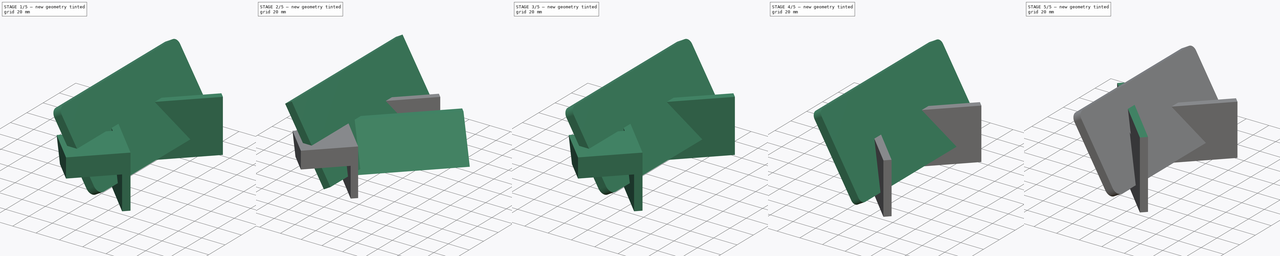
[diagram: build sequence overview — one tinted view per stage of 5, left to right]
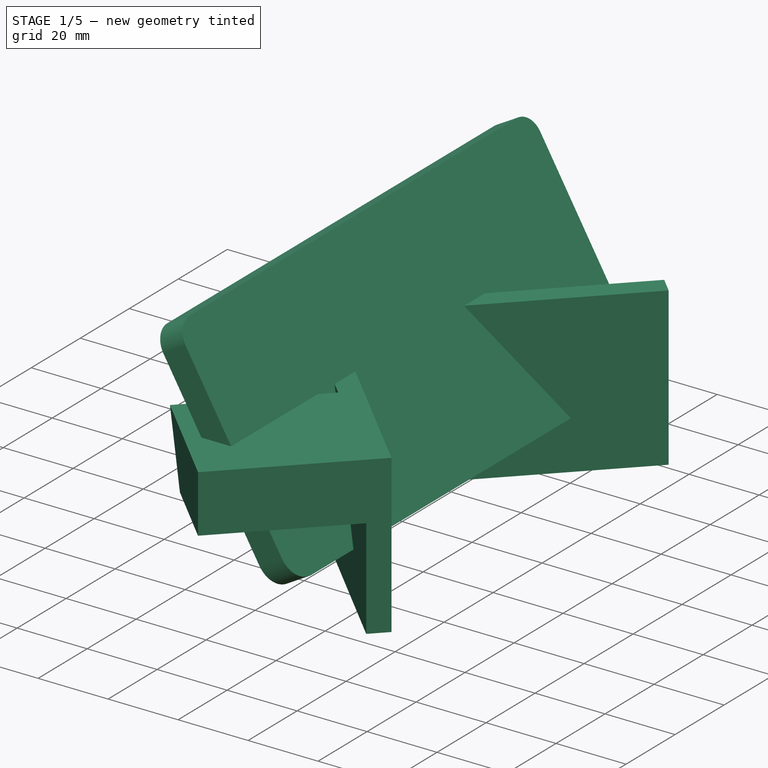
[diagram: stage 1 of 5 — iso view after this stage's code; geometry added in this stage tinted green]
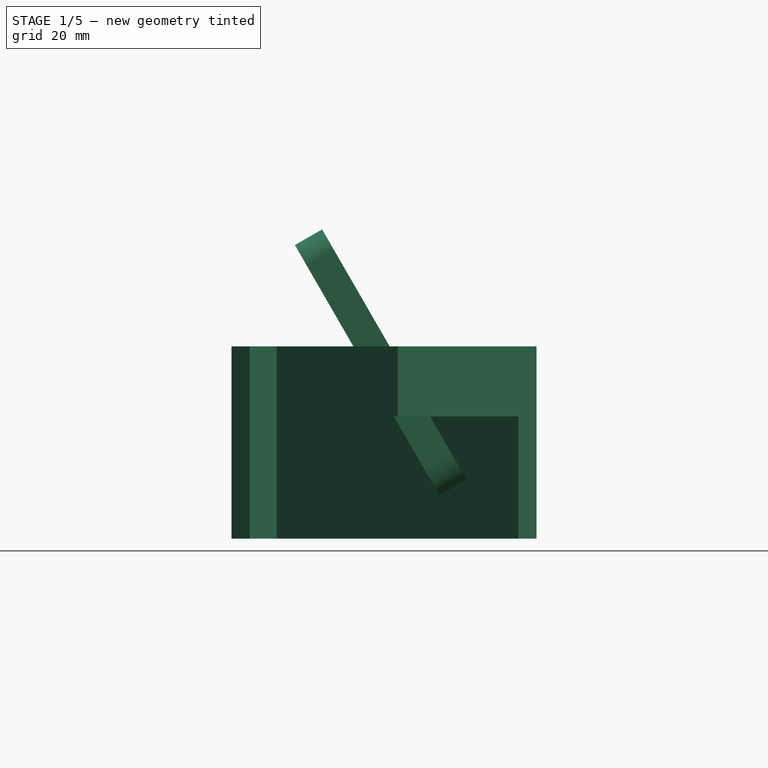
[diagram: stage 1 of 5 — front view after this stage's code; geometry added in this stage tinted green]
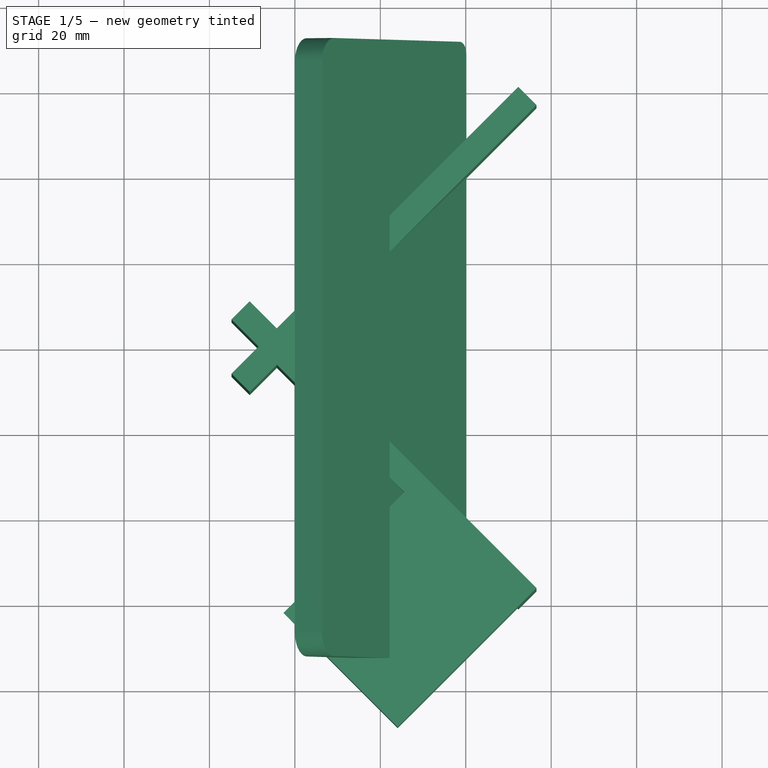
[diagram: stage 1 of 5 — top view after this stage's code; geometry added in this stage tinted green]
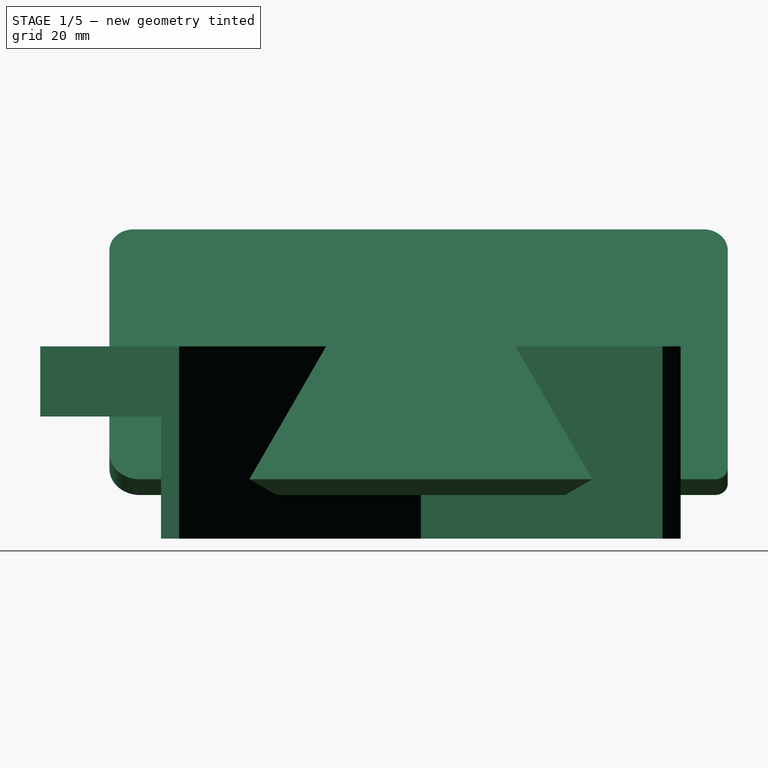
[diagram: stage 1 of 5 — right view after this stage's code; geometry added in this stage tinted green]
FCSTD DOCUMENT  (FreeCAD 0.16RUnknown)
Label: mobileStand
License: All rights reserved
LicenseURL: http://en.wikipedia.org/wiki/All_rights_reserved
objects: Sketcher::SketchObject×10, PartDesign::Pad×6, Part::Cut×5, Part::Feature×5, PartDesign::Fillet×4, Part::Extrusion×4, App::DocumentObjectGroup×4, Part::MultiFuse×2, Part::FeaturePython×2, Spreadsheet::Sheet×1, Part::Mirroring×1
note: 45 computed .brp shape members not serialized (recipe doc carries the construction recipe); baked Part::Feature solids carry a one-line shape summary decoded from their .brp

FEATURE [Sketcher::SketchObject] Sketch008
  ExternalGeometry = -> [Cut003]
  Placement = pos=(0,0,0) rot=(0.281085,0.678598,0.678598;2.59356rad)
  Support = -> Cut003 [Face1]
  sketch-geometry (4):
    g0: LineSegment StartX=-80 StartY=35 StartZ=0 EndX=-80 EndY=18.5966 EndZ=0
    g1: LineSegment StartX=-80 StartY=18.5966 StartZ=0 EndX=-55.5822 EndY=18.5966 EndZ=0
    g2: LineSegment StartX=-55.5822 StartY=18.5966 StartZ=0 EndX=-42.2061 EndY=35 EndZ=0
    g3: LineSegment StartX=-42.2061 StartY=35 StartZ=0 EndX=-80 EndY=35 EndZ=0
  constraints (9):
    c: Vertical(g0)
    c: Coincident(g0,g1)
    c: Horizontal(g1)
    c: Coincident(g1,g2)
    c: Coincident(g2,g3)
    c: Coincident(g3,g0)
    c: Horizontal(g3)
    c: Coincident(g0,g-5)
    c: Coincident(g2,g-5)
FEATURE [Part::Feature] Face002
  shape: bbox 26.72 x 26.72 x 16.4 mm, 1 faces, 0 solids (baked)
FEATURE [Part::Feature] Face003
  shape: bbox 56.57 x 56.57 x 45 mm, 1 faces, 0 solids (baked)
FEATURE [Part::Extrusion] Extrusion002
  Base = -> Face002
  Dir = (-32.5174,-32.5174,0)
  Solid = true
FEATURE [Part::Feature] Solid
  shape: bbox 71.42 x 71.42 x 45 mm, 26 faces (baked)
FEATURE [App::DocumentObjectGroup] Group002  label="thirdTry"
  Group = -> [Fillet003,Solid,Pad002,Sketch006,Sketch008,Cut004,Pad003,Face003,Sketch007,Fillet002]
FEATURE [Sketcher::SketchObject] Sketch009
  Placement = pos=(16.9514,0,29.3608) rot=(0,1,0;1.0472rad)
  sketch-geometry (8):
    g0: LineSegment StartX=-28.2797 StartY=71.8448 StartZ=0 EndX=30.657 EndY=71.8448 EndZ=0
    g1: LineSegment StartX=33.657 StartY=68.8448 StartZ=0 EndX=33.657 EndY=-65.7858 EndZ=0
    g2: LineSegment StartX=26.5393 StartY=-72.9035 StartZ=0 EndX=-28.2768 EndY=-72.9035 EndZ=0
    g3: LineSegment StartX=-33.9005 StartY=-67.2798 StartZ=0 EndX=-33.9005 EndY=66.224 EndZ=0
    g4: ArcOfCircle CenterX=26.5393 CenterY=-65.7858 CenterZ=0 NormalX=0 NormalY=0 NormalZ=1 Radius=7.11772 StartAngle=4.71239 EndAngle=6.28319
    g5: ArcOfCircle CenterX=30.657 CenterY=68.8448 CenterZ=0 NormalX=0 NormalY=0 NormalZ=1 Radius=3 StartAngle=0 EndAngle=1.5708
    g6: ArcOfCircle CenterX=-28.2797 CenterY=66.224 CenterZ=0 NormalX=0 NormalY=0 NormalZ=1 Radius=5.62078 StartAngle=1.5708 EndAngle=3.14159
    g7: ArcOfCircle CenterX=-28.2768 CenterY=-67.2798 CenterZ=0 NormalX=0 NormalY=0 NormalZ=1 Radius=5.62372 StartAngle=3.14159 EndAngle=4.71239
  constraints (13):
    c: Horizontal(g0)
    c: Horizontal(g2)
    c: Vertical(g1)
    c: Vertical(g3)
    c: Tangent(g1,g4) = 1.5708
    c: Tangent(g2,g4) = 1.5708
    c: Tangent(g0,g5) = 1.5708
    c: Tangent(g1,g5) = 1.5708
    c: Tangent(g0,g6) = 1.5708
    c: Tangent(g3,g6) = 1.5708
    c: Tangent(g2,g7) = 1.5708
    c: Tangent(g3,g7) = 1.5708
    c: Distance(g5,g0) = 3
FEATURE [PartDesign::Pad] Pad004  label="4a"
  Length = 7.35
  Length2 = 100
  Placement = pos=(16.9514,0,29.3608) rot=(0,1,0;1.0472rad)
  Sketch = -> Sketch009
  Type = 0
  expr: Length = equations.wdt
FEATURE [Sketcher::SketchObject] Sketch010
  sketch-geometry (5):
    g0: LineSegment StartX=0 StartY=0 StartZ=0 EndX=56.5685 EndY=-56.5685 EndZ=0
    g1: LineSegment StartX=56.5685 StartY=-56.5685 StartZ=0 EndX=52.3259 EndY=-60.8112 EndZ=0
    g2: LineSegment StartX=52.3259 StartY=-60.8112 StartZ=0 EndX=-14.8492 EndY=6.36396 EndZ=0
    g3: LineSegment StartX=-14.8492 StartY=6.36396 StartZ=0 EndX=-10.6066 EndY=10.6066 EndZ=0
    g4: LineSegment StartX=-10.6066 StartY=10.6066 StartZ=0 EndX=0 EndY=0 EndZ=0
  constraints (14):
    c: Coincident(g-1,g0)
    c: Coincident(g0,g1)
    c: Coincident(g1,g2)
    c: Coincident(g2,g3)
    c: Coincident(g3,g4)
    c: Coincident(g4,g0)
    c: Perpendicular(g1,g0)
    c: Perpendicular(g3,g4)
    c: Parallel(g1,g3)
    c: Parallel(g2,g0)
    c: Distance(g0) = 80
    c: Distance(g4) = 15
    c: Distance(g3) = 6
    c: Angle(g0,g-1) = 0.785398
FEATURE [PartDesign::Pad] Pad005  label="4b"
  Length = 35
  Length2 = 10
  Sketch = -> Sketch010
  Type = 4
FEATURE [Part::Mirroring] Part__Mirroring  label="4b (Mirror #1)"
  Base = (0,0,0)
  Normal = (1,0,0)
  Placement = pos=(0,0,0) rot=(0,0,1;3.14159rad)
  Source = -> Pad005
FEATURE [Part::MultiFuse] Fusion001
  Shapes = -> [Pad005,Part__Mirroring]
FEATURE [App::DocumentObjectGroup] Group003  label="fourthTry"
  Group = -> [Fusion001,Pad004]
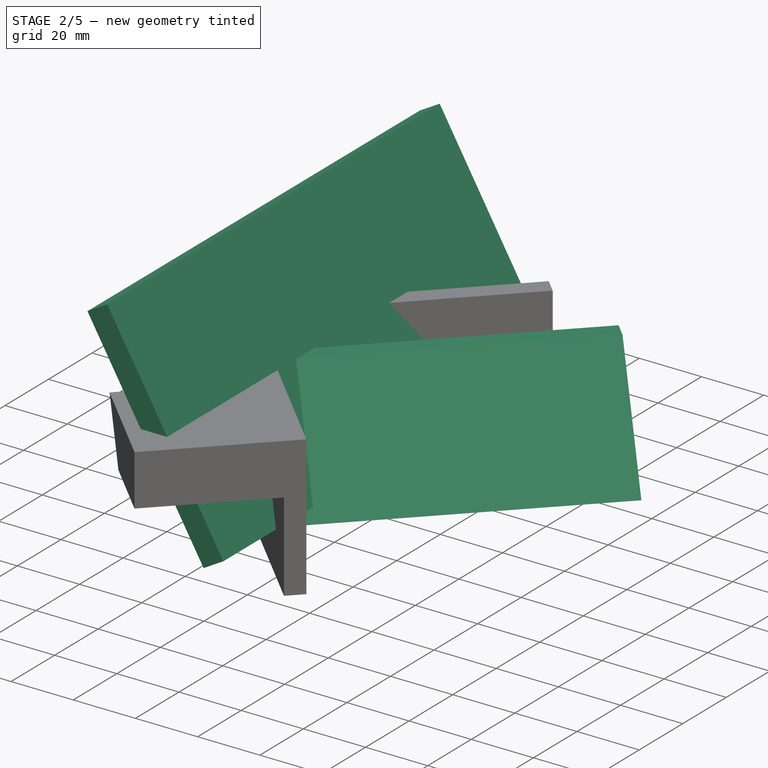
[diagram: stage 2 of 5 — iso view after this stage's code; geometry added in this stage tinted green]
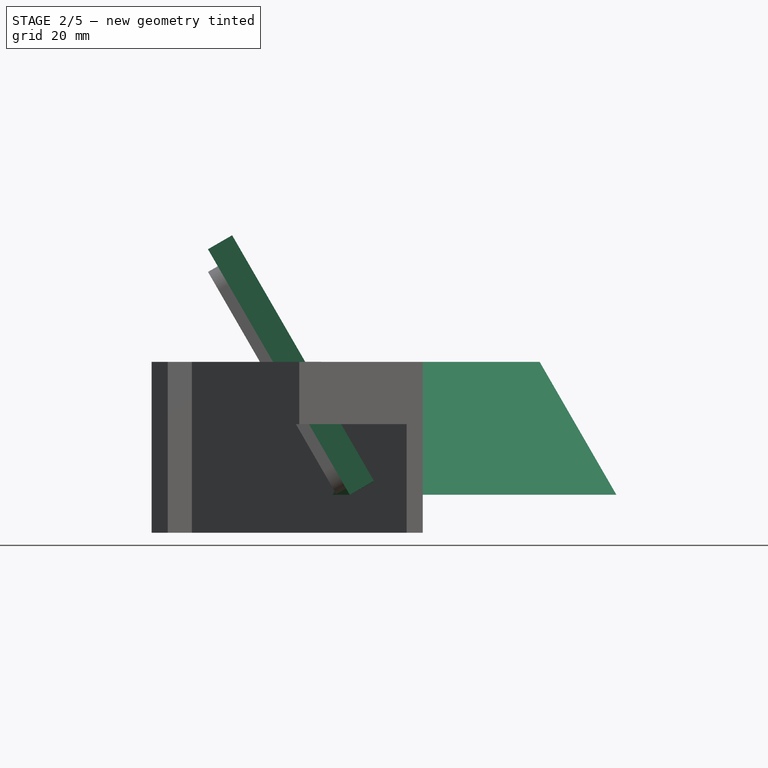
[diagram: stage 2 of 5 — front view after this stage's code; geometry added in this stage tinted green]
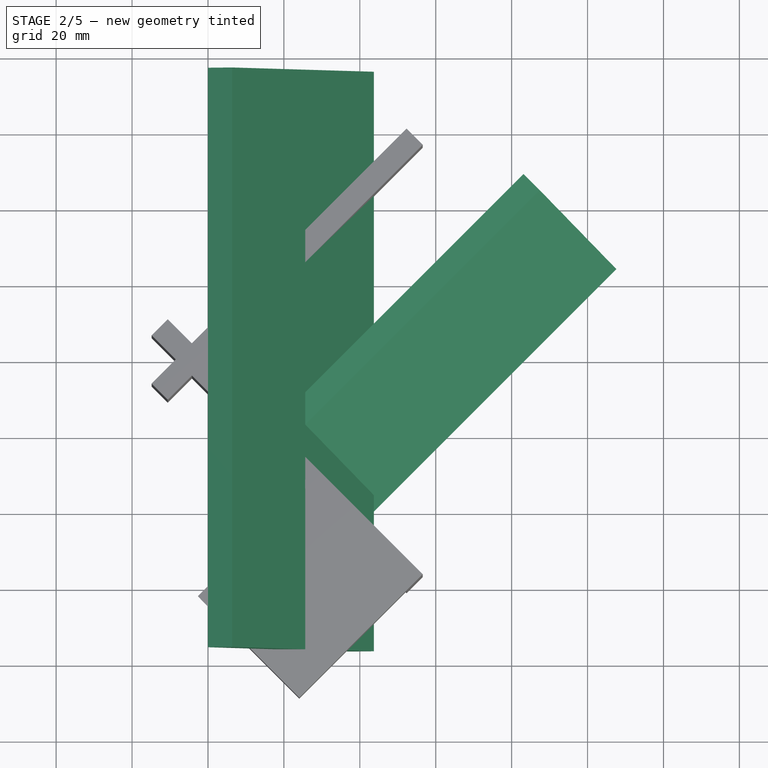
[diagram: stage 2 of 5 — top view after this stage's code; geometry added in this stage tinted green]
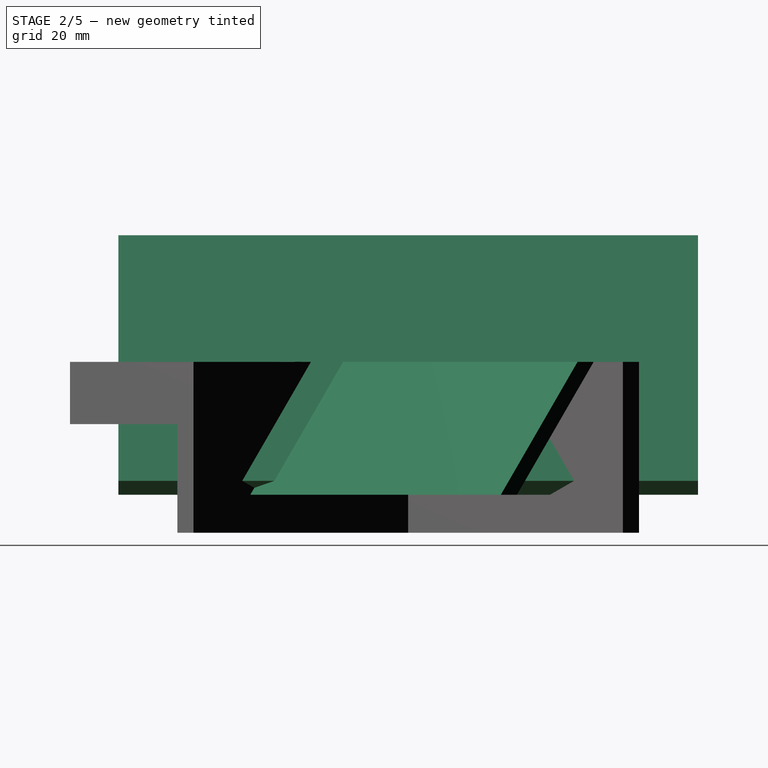
[diagram: stage 2 of 5 — right view after this stage's code; geometry added in this stage tinted green]
FEATURE [App::DocumentObjectGroup] Group  label="firstTry"
  Group = -> [Fillet,Pad,Cut]
FEATURE [Sketcher::SketchObject] Sketch002
  sketch-geometry (9):
    g0: LineSegment StartX=0 StartY=35 StartZ=0 EndX=34 EndY=35 EndZ=0
    g1: LineSegment StartX=34 StartY=35 StartZ=0 EndX=48.4338 EndY=10 EndZ=0
    g2: LineSegment StartX=48.4338 StartY=10 StartZ=0 EndX=57.4338 EndY=10 EndZ=0
    g3: LineSegment StartX=57.4338 StartY=10 StartZ=0 EndX=64.6394 EndY=20 EndZ=0
    g4: LineSegment StartX=64.6394 StartY=20 StartZ=0 EndX=85 EndY=20 EndZ=0
    g5: LineSegment StartX=85 StartY=20 StartZ=0 EndX=85 EndY=0 EndZ=0
    g6: LineSegment StartX=85 StartY=0 StartZ=0 EndX=0 EndY=0 EndZ=0
    g7: LineSegment StartX=0 StartY=0 StartZ=0 EndX=0 EndY=35 EndZ=0
    g8: GeomPoint [constr] X=61.5772 Y=15.7502 Z=0
  constraints (24):
    c: Coincident(g0,g1)
    c: Coincident(g1,g2)
    c: Horizontal(g2)
    c: Coincident(g4,g5)
    c: Coincident(g5,g6)
    c: Coincident(g6,g-1)
    c: Horizontal(g6)
    c: Coincident(g6,g7)
    c: Coincident(g7,g0)
    c: Vertical(g7)
    c: Perpendicular(g7,g0)
    c: Perpendicular(g6,g5)
    c: Angle(g2,g1) = 2.0944
    c: Parallel(g4,g2)
    c: DistanceY(g5,g2) = 10
    c: Distance(g6) = 85
    c: DistanceX(g0,g0) = 34
    c: DistanceY(g7,g7) = 35
    c: DistanceY(g5,g5) = 20
    c: Coincident(g4,g3)
    c: DistanceY(g3,g3) = 10
    c: Coincident(g3,g2)
    c: DistanceX(g2,g2) = 9
    c: PointOnObject(g8,g3)
FEATURE [App::DocumentObjectGroup] Group001  label="secondTry"
  Group = -> [Sketch002]
FEATURE [Sketcher::SketchObject] Sketch003
  Placement = pos=(18.675,0,32.346) rot=(0,1,0;1.0472rad)
  expr: Constraints[9] = equations.lgt
  expr: Constraints[8] = equations.hyt
  sketch-geometry (4):
    g0: LineSegment StartX=-37.35 StartY=76.35 StartZ=0 EndX=37.35 EndY=76.35 EndZ=0
    g1: LineSegment StartX=37.35 StartY=76.35 StartZ=0 EndX=37.35 EndY=-76.35 EndZ=0
    g2: LineSegment StartX=37.35 StartY=-76.35 StartZ=0 EndX=-37.35 EndY=-76.35 EndZ=0
    g3: LineSegment StartX=-37.35 StartY=-76.35 StartZ=0 EndX=-37.35 EndY=76.35 EndZ=0
  constraints (12):
    c: Coincident(g0,g1)
    c: Coincident(g1,g2)
    c: Coincident(g2,g3)
    c: Coincident(g3,g0)
    c: Horizontal(g0)
    c: Horizontal(g2)
    c: Vertical(g1)
    c: Vertical(g3)
    c: DistanceX(g0,g0) = 74.7
    c: DistanceY(g1,g1) = 152.7
    c: Symmetric(g0,g0,g-2)
    c: Symmetric(g0,g1,g-1)
FEATURE [PartDesign::Pad] Pad002
  Length = 7.35
  Length2 = 100
  Placement = pos=(18.675,0,32.346) rot=(0,1,0;1.0472rad)
  Sketch = -> Sketch003
  Type = 0
  expr: Length = equations.wdt
FEATURE [Sketcher::SketchObject] Sketch005  label="Stay"
  expr: Constraints[10] = equations.ply
  sketch-geometry (5):
    g0: LineSegment StartX=0 StartY=0 StartZ=0 EndX=56.5685 EndY=-56.5685 EndZ=0
    g1: LineSegment StartX=56.5685 StartY=-56.5685 StartZ=0 EndX=52.3259 EndY=-60.8112 EndZ=0
    g2: LineSegment StartX=52.3259 StartY=-60.8112 StartZ=0 EndX=-14.8492 EndY=6.36396 EndZ=0
    g3: LineSegment StartX=-14.8492 StartY=6.36396 StartZ=0 EndX=-10.6066 EndY=10.6066 EndZ=0
    g4: LineSegment StartX=-10.6066 StartY=10.6066 StartZ=0 EndX=0 EndY=0 EndZ=0
  constraints (14):
    c: Coincident(g0,g-1)
    c: Coincident(g1,g0)
    c: Coincident(g2,g1)
    c: Coincident(g2,g3)
    c: Coincident(g3,g4)
    c: Coincident(g4,g-1)
    c: Angle(g0,g-1) = 0.785398
    c: Perpendicular(g0,g1)
    c: Perpendicular(g3,g4)
    c: Parallel(g2,g4)
    c: Distance(g1) = 6
    c: Equal(g1,g3)
    c: Distance(g0) = 80
    c: Distance(g4) = 15
FEATURE [PartDesign::Pad] Pad003
  Length = 35
  Length2 = 10
  Sketch = -> Sketch005
  Type = 4
FEATURE [Part::FeaturePython] Clone001  label="Clone of Pad003"  # Draft clone (typed FeaturePython)
  Objects = -> [Pad003]
  Scale = (1,1,1)
FEATURE [Sketcher::SketchObject] Sketch006
  ExternalGeometry = -> [Cut001]
  Placement = pos=(-4.24264,-4.24264,0) rot=(0.862856,-0.357407,-0.357407;1.71777rad)
  Support = -> Cut001 [Face10]
  sketch-geometry (4):
    g0: LineSegment StartX=30.2435 StartY=35 StartZ=0 EndX=24.2435 EndY=35 EndZ=0
    g1: LineSegment StartX=24.2435 StartY=35 StartZ=0 EndX=52.8209 EndY=0 EndZ=0
    g2: LineSegment StartX=52.8209 StartY=0 StartZ=0 EndX=58.8209 EndY=0 EndZ=0
    g3: LineSegment StartX=58.8209 StartY=0 StartZ=0 EndX=30.2435 EndY=35 EndZ=0
  constraints (8):
    c: Coincident(g-3,g0)
    c: Coincident(g0,g-4)
    c: Coincident(g0,g1)
    c: Coincident(g1,g-4)
    c: Coincident(g1,g2)
    c: Coincident(g2,g-3)
    c: Coincident(g2,g3)
    c: Coincident(g3,g0)
FEATURE [Part::Feature] Face
  shape: bbox 24.45 x 24.45 x 35 mm, 1 faces, 0 solids (baked)
FEATURE [Part::Extrusion] Extrusion
  Base = -> Face
  Dir = (70.2462,70.2462,-3.78e-10)
  Solid = true
FEATURE [Sketcher::SketchObject] Sketch007
  ExternalGeometry = -> [Cut002]
  Placement = pos=(0,0,0) rot=(0.281085,0.678598,0.678598;2.59356rad)
  Support = -> Cut002 [Face1]
  sketch-geometry (6):
    g0: LineSegment StartX=-42.246 StartY=35 StartZ=0 EndX=-36.246 EndY=35 EndZ=0
    g1: LineSegment StartX=-36.246 StartY=35 StartZ=0 EndX=-61.8228 EndY=3.675 EndZ=0
    g2: LineSegment StartX=-61.8228 StartY=3.675 StartZ=0 EndX=-57.3209 EndY=1.83712 EndZ=0
    g3: LineSegment StartX=-57.3209 StartY=1.83712 StartZ=0 EndX=-58.8209 EndY=0 EndZ=0
    g4: LineSegment StartX=-58.8209 StartY=0 StartZ=0 EndX=-67.8212 EndY=3.58777 EndZ=0
    g5: LineSegment StartX=-67.8212 StartY=3.58777 StartZ=0 EndX=-42.1675 EndY=35.0473 EndZ=0
  constraints (10):
    c: Coincident(g-3,g0)
    c: Coincident(g0,g-4)
    c: Coincident(g0,g1)
    c: Coincident(g1,g-5)
    c: Coincident(g1,g2)
    c: Coincident(g2,g-5)
    c: Coincident(g2,g3)
    c: Coincident(g3,g-6)
    c: Coincident(g3,g4)
    c: Coincident(g4,g5)
FEATURE [Part::Feature] Face001
  shape: bbox 22.33 x 22.33 x 35.05 mm, 1 faces, 0 solids (baked)
FEATURE [Part::Extrusion] Extrusion001
  Base = -> Face001
  Dir = (-8.81022,-8.81022,0)
  Solid = true
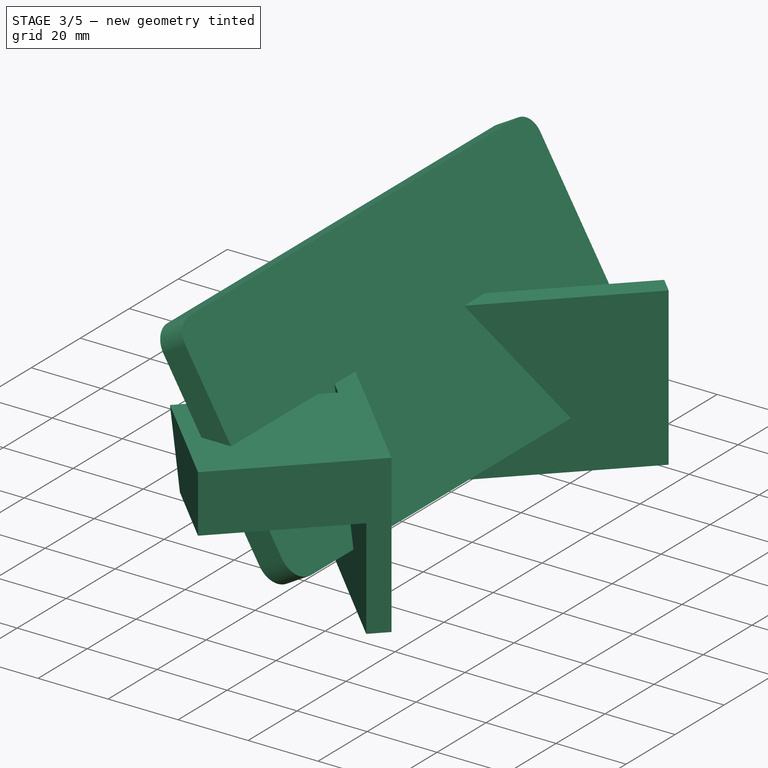
[diagram: stage 3 of 5 — iso view after this stage's code; geometry added in this stage tinted green]
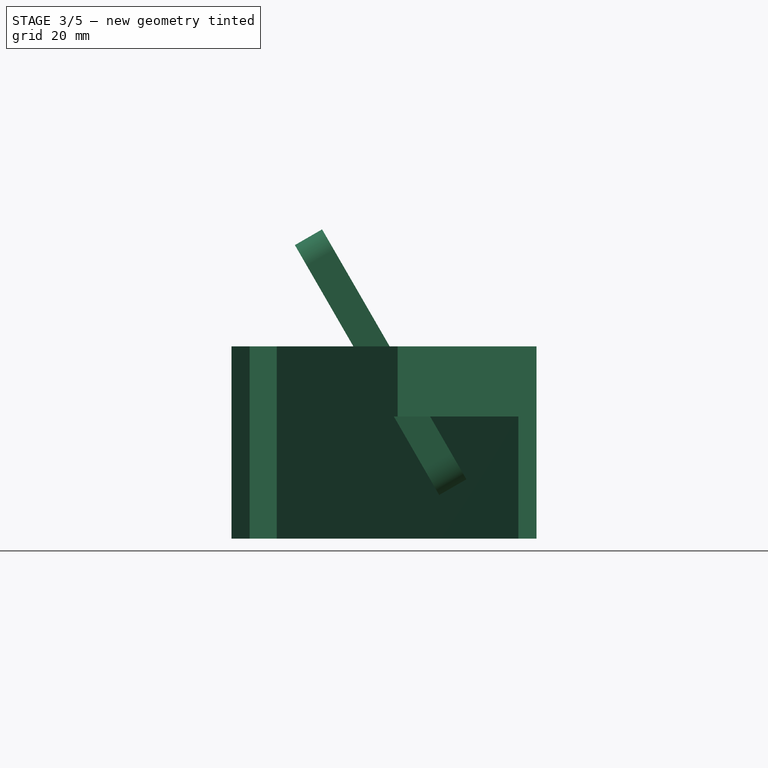
[diagram: stage 3 of 5 — front view after this stage's code; geometry added in this stage tinted green]
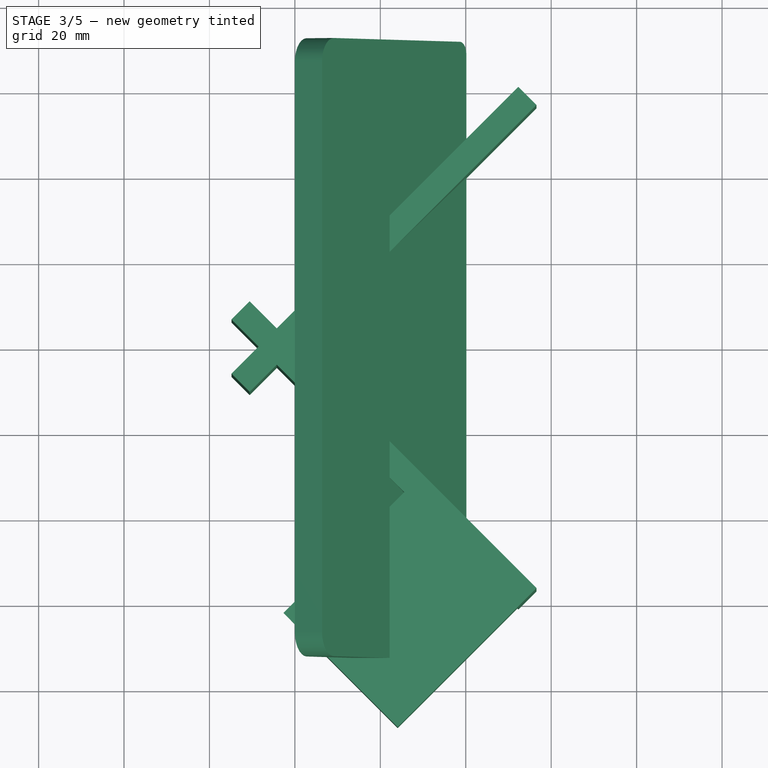
[diagram: stage 3 of 5 — top view after this stage's code; geometry added in this stage tinted green]
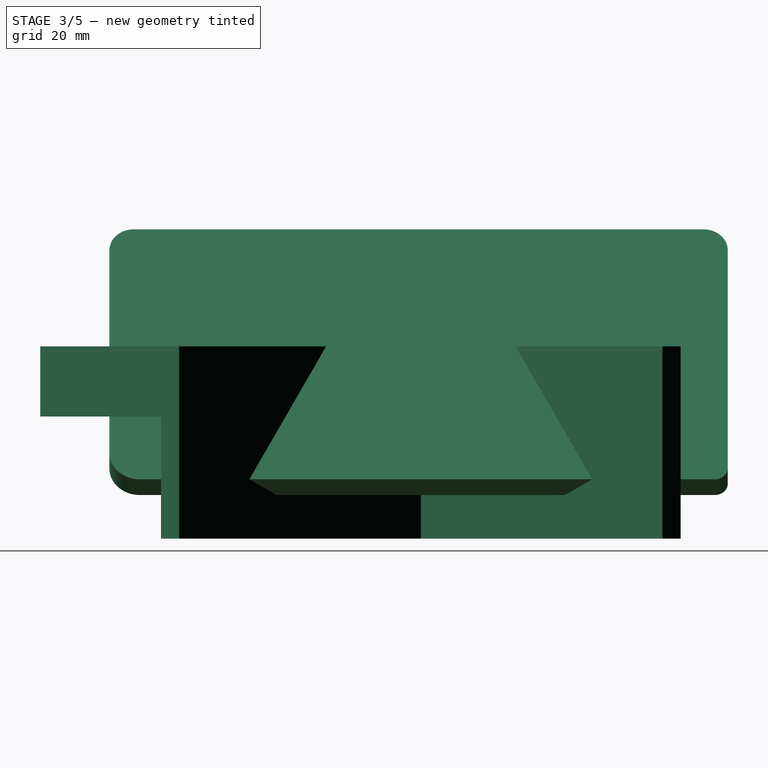
[diagram: stage 3 of 5 — right view after this stage's code; geometry added in this stage tinted green]
FEATURE [PartDesign::Fillet] Fillet001
  Base = -> Pad002 [Edge1,Edge2,Edge5,Edge8]
  Placement = pos=(18.675,0,32.346) rot=(0,1,0;1.0472rad)
  Radius = 3
FEATURE [Part::Cut] Cut001
  Base = -> Clone001
  Tool = -> Fillet001
FEATURE [Part::Cut] Cut002
  Base = -> Cut001
  Tool = -> Extrusion
FEATURE [Part::Cut] Cut003
  Base = -> Cut002
  Tool = -> Extrusion001
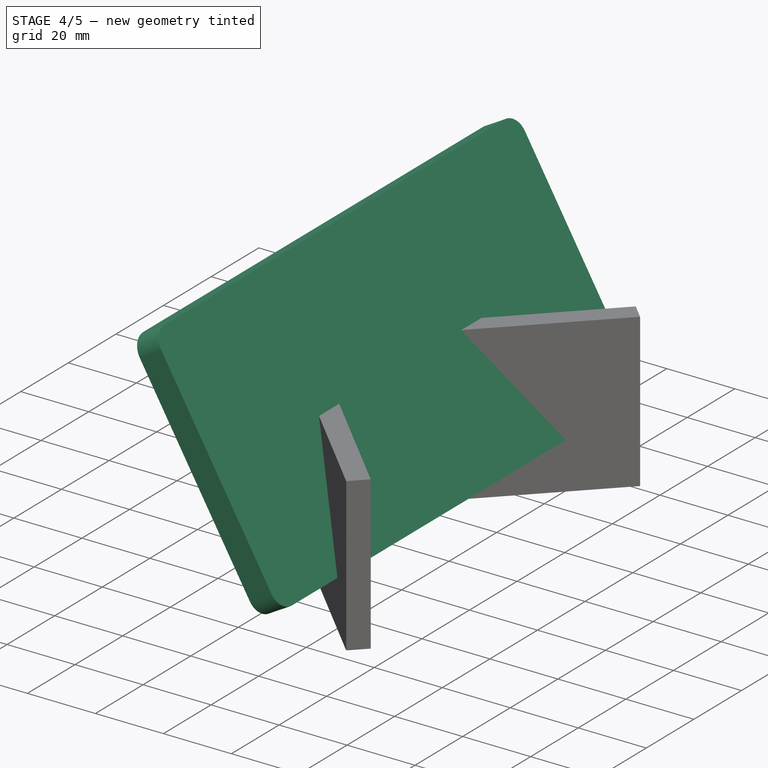
[diagram: stage 4 of 5 — iso view after this stage's code; geometry added in this stage tinted green]
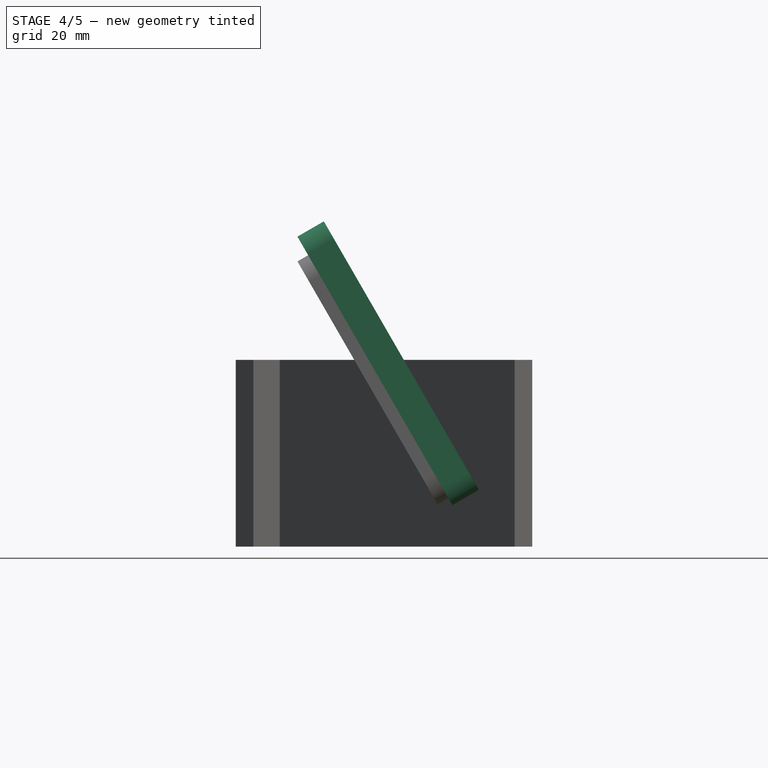
[diagram: stage 4 of 5 — front view after this stage's code; geometry added in this stage tinted green]
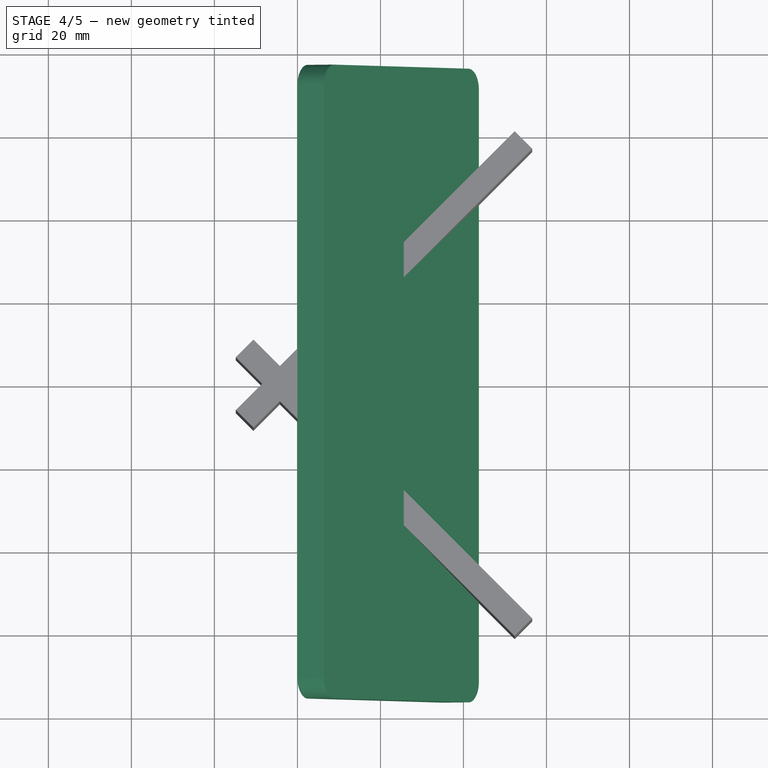
[diagram: stage 4 of 5 — top view after this stage's code; geometry added in this stage tinted green]
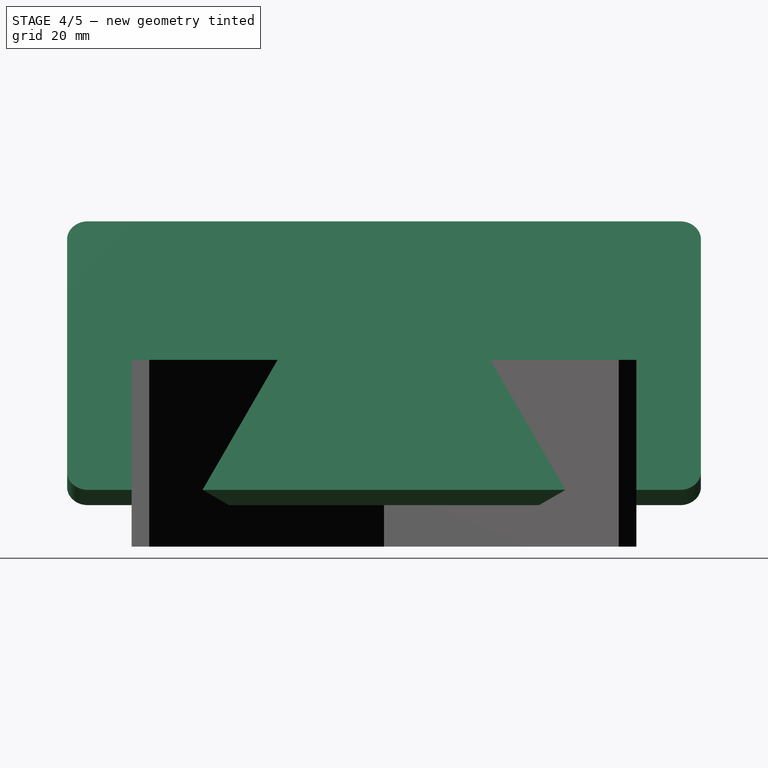
[diagram: stage 4 of 5 — right view after this stage's code; geometry added in this stage tinted green]
FEATURE [Spreadsheet::Sheet] Spreadsheet  label="equations"
  cells = A1=height; B1=hyt; C1(hyt)=74.7; A2=width; B2=wdt; C2(wdt)=7.35; A3=length; B3=lgt; C3(lgt)=152.7; A5=plyWidth; B5=ply; C5(ply)=6
FEATURE [Sketcher::SketchObject] Sketch  label="mobile"
  Placement = pos=(18.675,0,32.346) rot=(0,1,0;1.0472rad)
  expr: Constraints[9] = equations.lgt
  expr: Constraints[8] = equations.hyt
  sketch-geometry (4):
    g0: LineSegment StartX=-37.35 StartY=76.35 StartZ=0 EndX=37.35 EndY=76.35 EndZ=0
    g1: LineSegment StartX=37.35 StartY=76.35 StartZ=0 EndX=37.35 EndY=-76.35 EndZ=0
    g2: LineSegment StartX=37.35 StartY=-76.35 StartZ=0 EndX=-37.35 EndY=-76.35 EndZ=0
    g3: LineSegment StartX=-37.35 StartY=-76.35 StartZ=0 EndX=-37.35 EndY=76.35 EndZ=0
  constraints (12):
    c: Coincident(g0,g1)
    c: Coincident(g1,g2)
    c: Coincident(g2,g3)
    c: Coincident(g3,g0)
    c: Horizontal(g0)
    c: Horizontal(g2)
    c: Vertical(g1)
    c: Vertical(g3)
    c: Distance(g0) = 74.7
    c: Distance(g1) = 152.7
    c: Symmetric(g0,g0,g-2)
    c: Symmetric(g0,g2,g-1)
FEATURE [PartDesign::Pad] Pad
  Length = 7.35
  Length2 = 100
  Placement = pos=(18.675,0,32.346) rot=(0,1,0;1.0472rad)
  Sketch = -> Sketch
  Type = 0
  expr: Length = equations.wdt
FEATURE [PartDesign::Fillet] Fillet
  Base = -> Pad [Edge5,Edge2,Edge1,Edge8]
  Placement = pos=(18.675,0,32.346) rot=(0,1,0;1.0472rad)
  Radius = 5
FEATURE [Part::Cut] Cut004
  Base = -> Cut003
  Tool = -> Extrusion002
FEATURE [PartDesign::Fillet] Fillet002
  Base = -> Cut004 [Edge16]
  Radius = 6
FEATURE [PartDesign::Fillet] Fillet003
  Base = -> Fillet002 [Edge35,Edge26,Edge19]
  Radius = 2
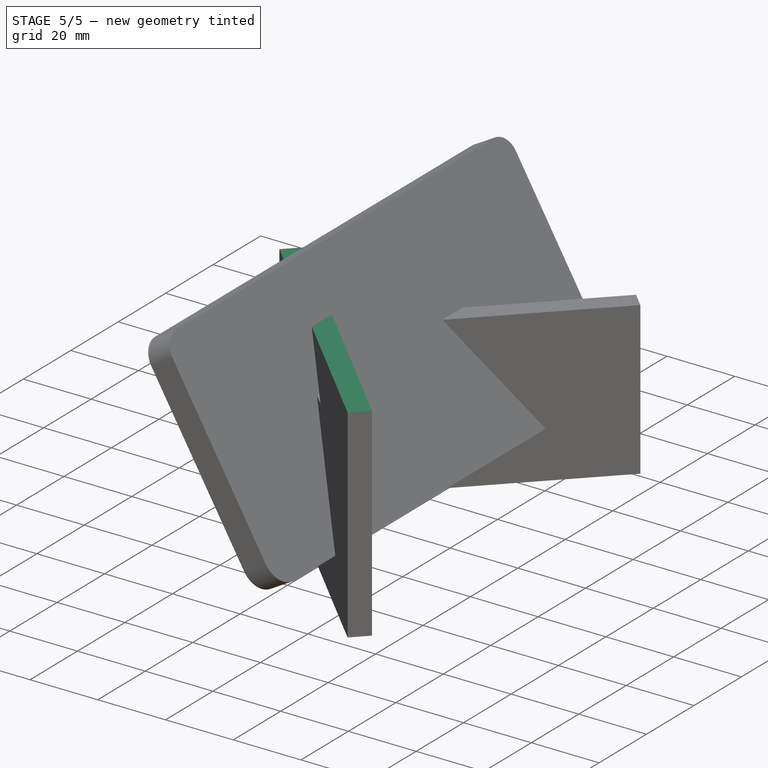
[diagram: stage 5 of 5 — iso view after this stage's code; geometry added in this stage tinted green]
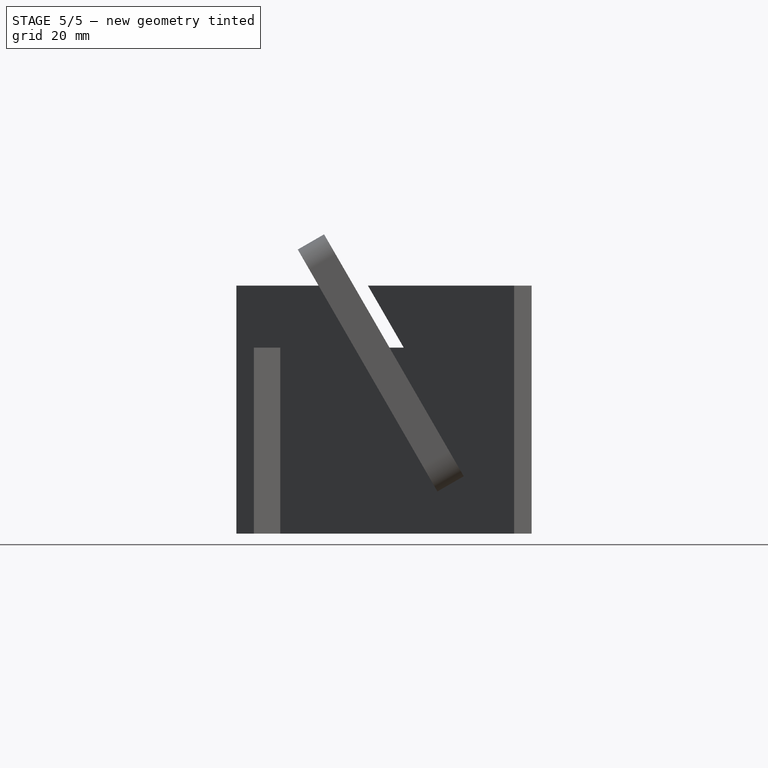
[diagram: stage 5 of 5 — front view after this stage's code; geometry added in this stage tinted green]
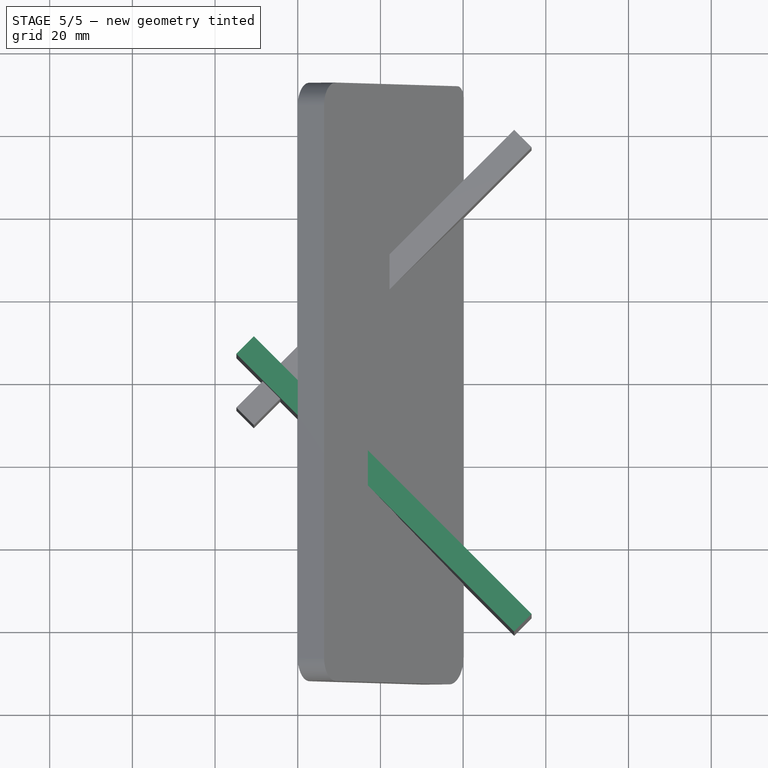
[diagram: stage 5 of 5 — top view after this stage's code; geometry added in this stage tinted green]
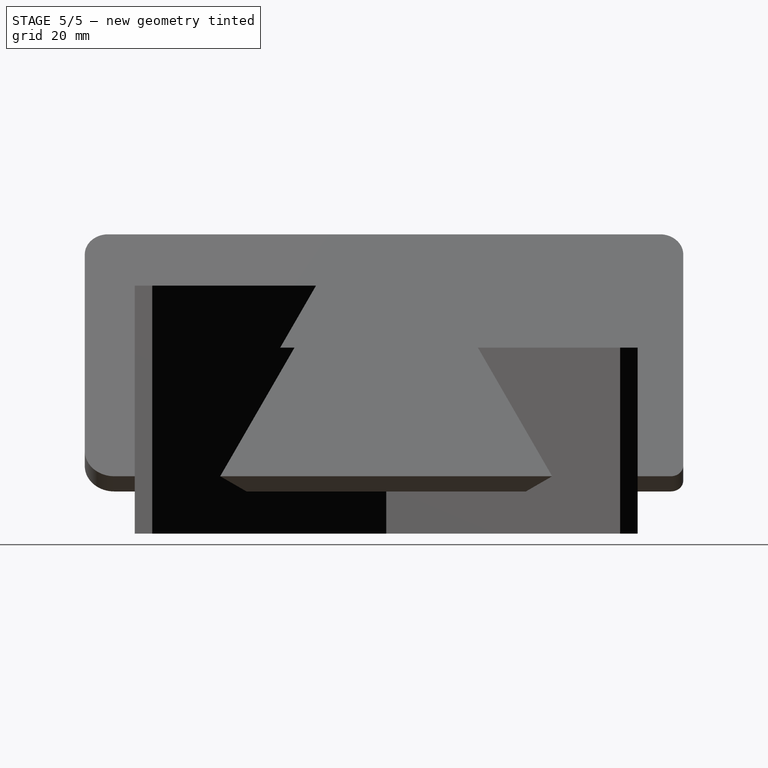
[diagram: stage 5 of 5 — right view after this stage's code; geometry added in this stage tinted green]
FEATURE [Sketcher::SketchObject] Sketch001  label="stand"
  expr: Constraints[12] = equations.ply
  sketch-geometry (5):
    g0: LineSegment StartX=0 StartY=0 StartZ=0 EndX=56.5685 EndY=-56.5685 EndZ=0
    g1: LineSegment StartX=56.5685 StartY=-56.5685 StartZ=0 EndX=52.3259 EndY=-60.8112 EndZ=0
    g2: LineSegment StartX=52.3259 StartY=-60.8112 StartZ=0 EndX=-14.8492 EndY=6.36396 EndZ=0
    g3: LineSegment StartX=-14.8492 StartY=6.36396 StartZ=0 EndX=-10.6066 EndY=10.6066 EndZ=0
    g4: LineSegment StartX=-10.6066 StartY=10.6066 StartZ=0 EndX=0 EndY=0 EndZ=0
  constraints (14):
    c: Coincident(g-1,g0)
    c: Coincident(g0,g1)
    c: Coincident(g1,g2)
    c: Coincident(g2,g3)
    c: Coincident(g3,g4)
    c: Coincident(g4,g0)
    c: Perpendicular(g4,g3)
    c: Perpendicular(g0,g1)
    c: Perpendicular(g2,g3)
    c: Perpendicular(g1,g2)
    c: Distance(g0) = 80
    c: Distance(g4) = 15
    c: Distance(g1) = 6
    c: Angle(g0,g-1) = 0.785398
FEATURE [PartDesign::Pad] Pad001  label="topofStand"
  Length = 50
  Length2 = 100
  Sketch = -> Sketch001
  Type = 0
FEATURE [Part::Extrusion] Extrude  label="bottomExtrude"
  Dir = (0,0,-10)
  Solid = true
FEATURE [Part::MultiFuse] Fusion  label="standOneside"
  Shapes = -> [Pad001,Extrude]
FEATURE [Part::FeaturePython] Clone  label="Clone of Fillet"  # Draft clone (typed FeaturePython)
  Objects = -> [Fillet]
  Placement = pos=(18.675,0,32.346) rot=(0,1,0;1.0472rad)
  Scale = (1,1,1)
FEATURE [Part::Cut] Cut
  Base = -> Fusion
  Tool = -> Clone
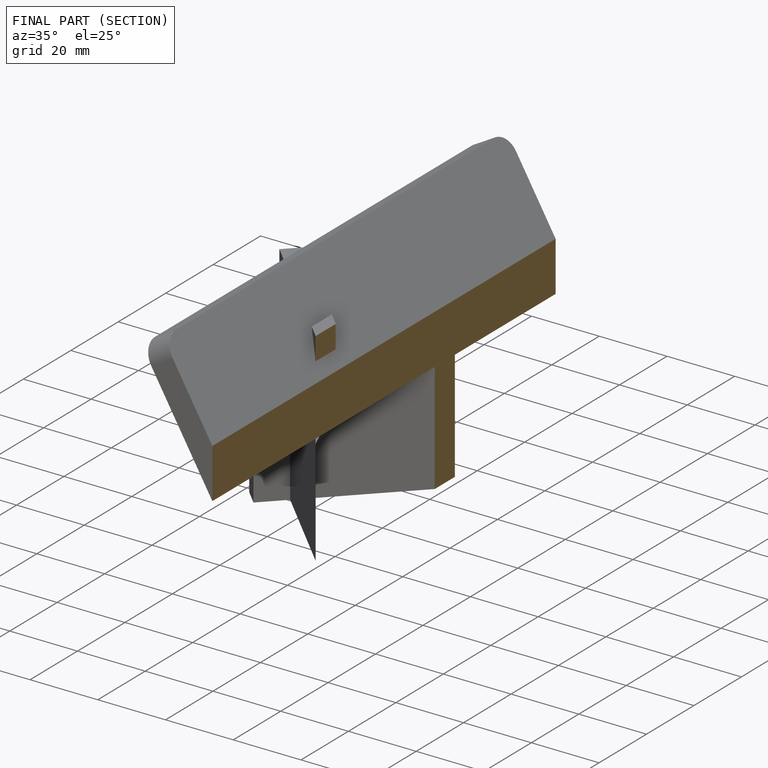
[diagram: finished part — half-section view (interior)]
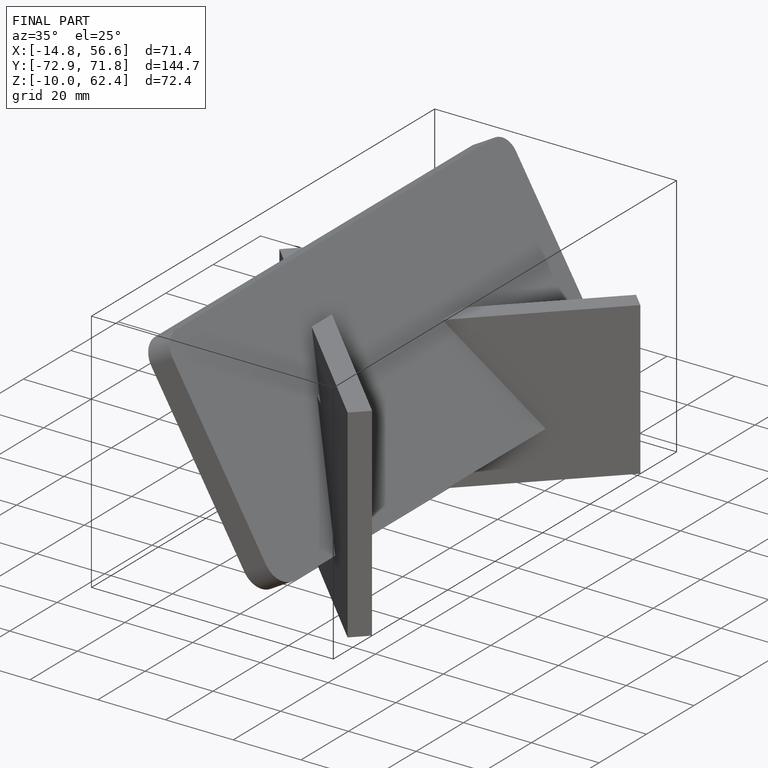
[diagram: finished part — iso view with bounding-box wireframe]
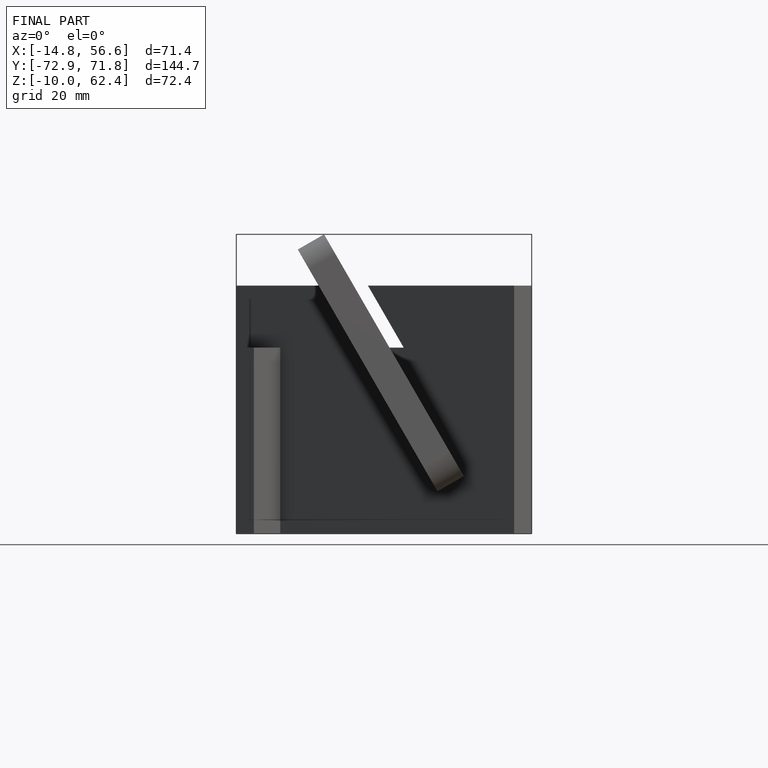
[diagram: finished part — front view with bounding-box wireframe]
